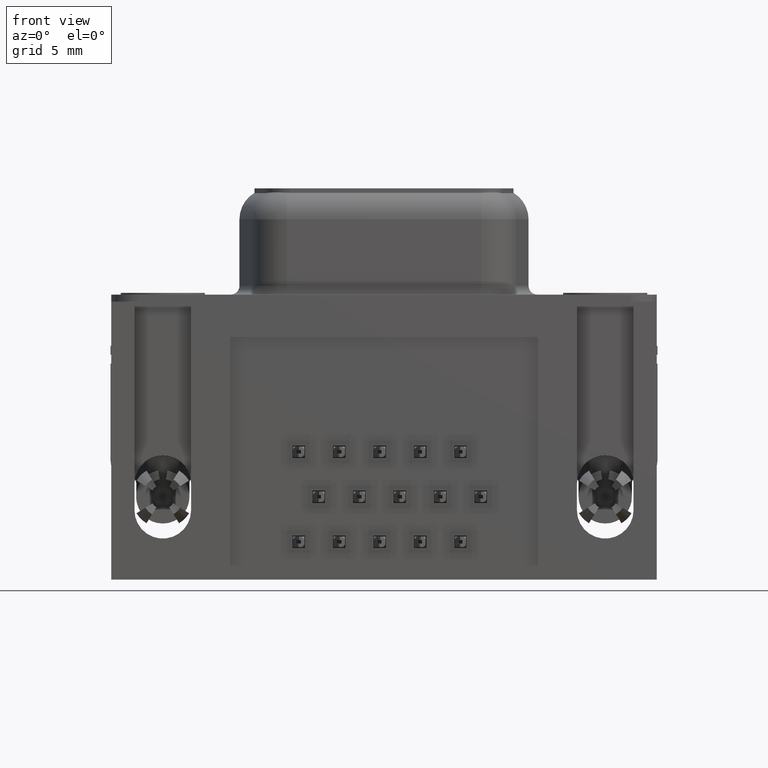
[diagram: clean part render]
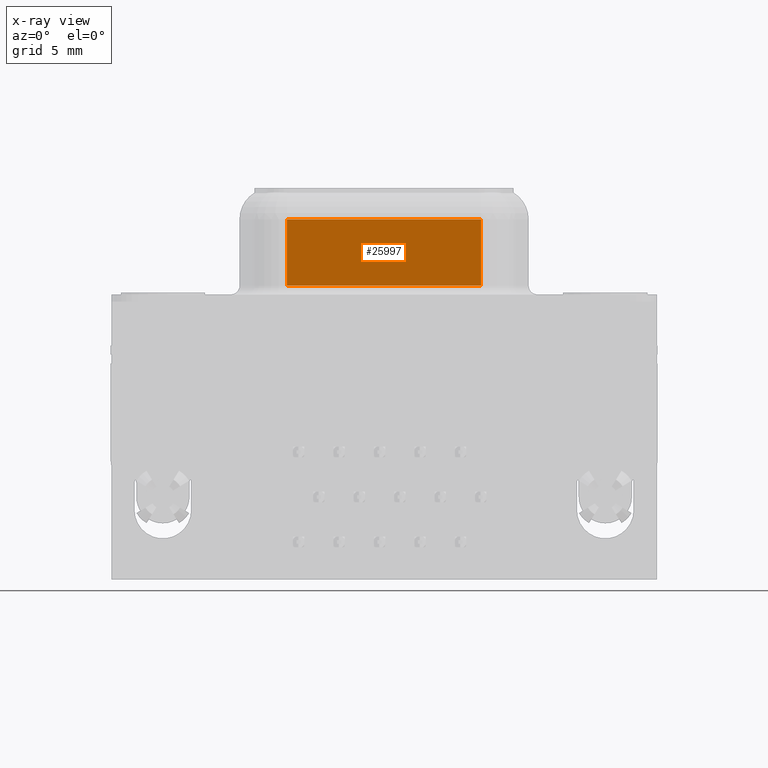
[diagram: x-ray — body ghosted, one internal face saturated and labeled with its STEP entity id]
A machine part, front view, then the same camera in x-ray: the body is ghosted and one INTERNAL B-rep face — a face not visible from any outside direction — is saturated and labeled: STEP entity #25997.
In plain terms, the highlighted planar face has unit normal (0, 1, 0).
Its self-contained STEP definition (entity closure, byte-faithful):
#2163 = DIRECTION ( 'NONE',  ( -0.0000000000000000000, -0.0000000000000000000, -1.000000000000000000 ) ) ;
#2925 = ORIENTED_EDGE ( 'NONE', *, *, #8806, .F. ) ;
#3006 = VERTEX_POINT ( 'NONE', #15777 ) ;
#3095 = EDGE_LOOP ( 'NONE', ( #9197, #2925, #21281, #6717 ) ) ;
#4367 = VERTEX_POINT ( 'NONE', #16723 ) ;
#5988 = LINE ( 'NONE', #26158, #29706 ) ;
#6717 = ORIENTED_EDGE ( 'NONE', *, *, #13017, .F. ) ;
#7898 = CARTESIAN_POINT ( 'NONE',  ( 17.97232477523699900, -3.550000000000001200, 6.400000000000000400 ) ) ;
#8316 = EDGE_CURVE ( 'NONE', #18376, #4367, #30063, .T. ) ;
#8549 = DIRECTION ( 'NONE',  ( -0.0000000000000000000, -0.0000000000000000000, -1.000000000000000000 ) ) ;
#8806 = EDGE_CURVE ( 'NONE', #4367, #3006, #5988, .T. ) ;
#9197 = ORIENTED_EDGE ( 'NONE', *, *, #31351, .T. ) ;
#10214 = VECTOR ( 'NONE', #2163, 1000.000000000000000 ) ;
#10686 = LINE ( 'NONE', #21874, #30199 ) ;
#12831 = PLANE ( 'NONE',  #17178 ) ;
#13017 = EDGE_CURVE ( 'NONE', #29852, #18376, #10686, .T. ) ;
#14773 = CARTESIAN_POINT ( 'NONE',  ( 7.017675224762973200, -3.550000000000001200, 4.650000000000000400 ) ) ;
#15188 = DIRECTION ( 'NONE',  ( 0.0000000000000000000, 1.000000000000000000, -0.0000000000000000000 ) ) ;
#15449 = VECTOR ( 'NONE', #8549, 1000.000000000000000 ) ;
#15777 = CARTESIAN_POINT ( 'NONE',  ( 17.97232477523699900, -3.550000000000000300, 0.8999999999999998000 ) ) ;
#16723 = CARTESIAN_POINT ( 'NONE',  ( 7.017675224762973200, -3.550000000000001200, 0.8999999999999998000 ) ) ;
#16987 = LINE ( 'NONE', #18302, #15449 ) ;
#17178 = AXIS2_PLACEMENT_3D ( 'NONE', #7898, #15188, #29928 ) ;
#18302 = CARTESIAN_POINT ( 'NONE',  ( 17.97232477523699900, -3.550000000000000300, 6.400000000000000400 ) ) ;
#18376 = VERTEX_POINT ( 'NONE', #14773 ) ;
#21261 = DIRECTION ( 'NONE',  ( 1.000000000000000000, -0.0000000000000000000, 0.0000000000000000000 ) ) ;
#21281 = ORIENTED_EDGE ( 'NONE', *, *, #8316, .F. ) ;
#21874 = CARTESIAN_POINT ( 'NONE',  ( 17.97232477523699900, -3.550000000000001200, 4.650000000000000400 ) ) ;
#25013 = FACE_OUTER_BOUND ( 'NONE', #3095, .T. ) ;
#25997 = ADVANCED_FACE ( 'NONE', ( #25013 ), #12831, .T. ) ;
#26158 = CARTESIAN_POINT ( 'NONE',  ( 17.97232477523699900, -3.550000000000001200, 0.8999999999999998000 ) ) ;
#29105 = CARTESIAN_POINT ( 'NONE',  ( 7.017675224762973200, -3.550000000000001200, 6.400000000000000400 ) ) ;
#29251 = DIRECTION ( 'NONE',  ( -1.000000000000000000, 0.0000000000000000000, -0.0000000000000000000 ) ) ;
#29706 = VECTOR ( 'NONE', #21261, 1000.000000000000000 ) ;
#29852 = VERTEX_POINT ( 'NONE', #30462 ) ;
#29928 = DIRECTION ( 'NONE',  ( 0.0000000000000000000, 0.0000000000000000000, 1.000000000000000000 ) ) ;
#30063 = LINE ( 'NONE', #29105, #10214 ) ;
#30199 = VECTOR ( 'NONE', #29251, 1000.000000000000000 ) ;
#30462 = CARTESIAN_POINT ( 'NONE',  ( 17.97232477523699900, -3.550000000000000300, 4.650000000000000400 ) ) ;
#31351 = EDGE_CURVE ( 'NONE', #29852, #3006, #16987, .T. ) ;